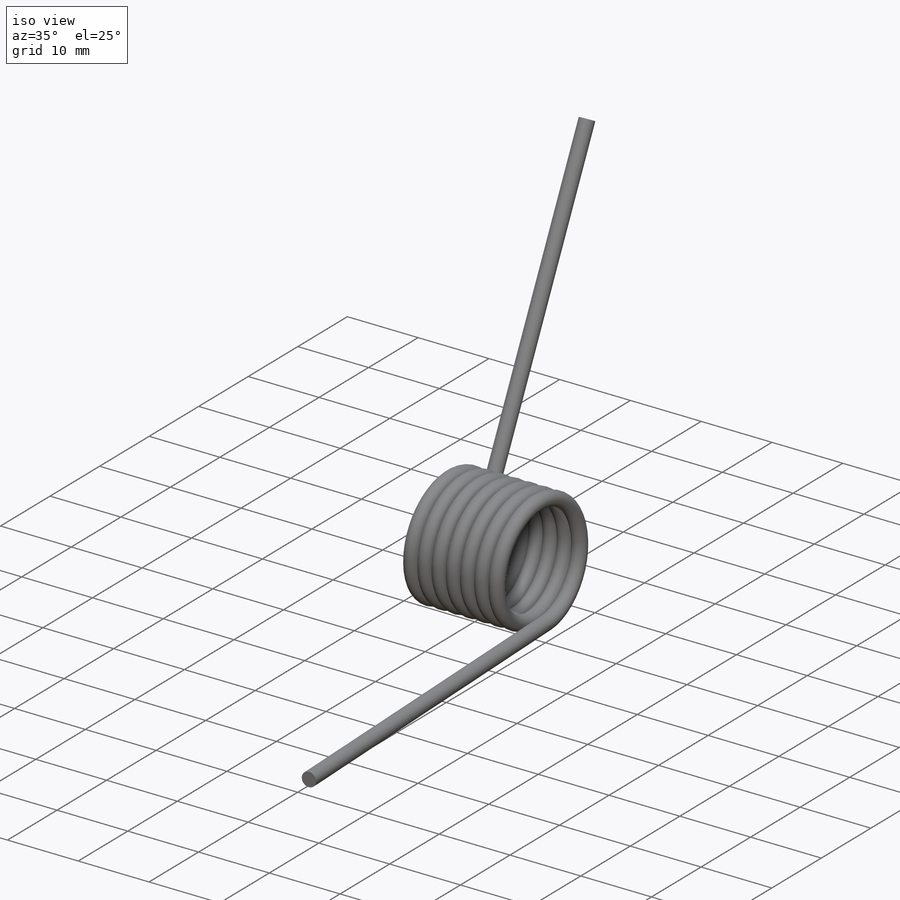
[diagram: iso view]
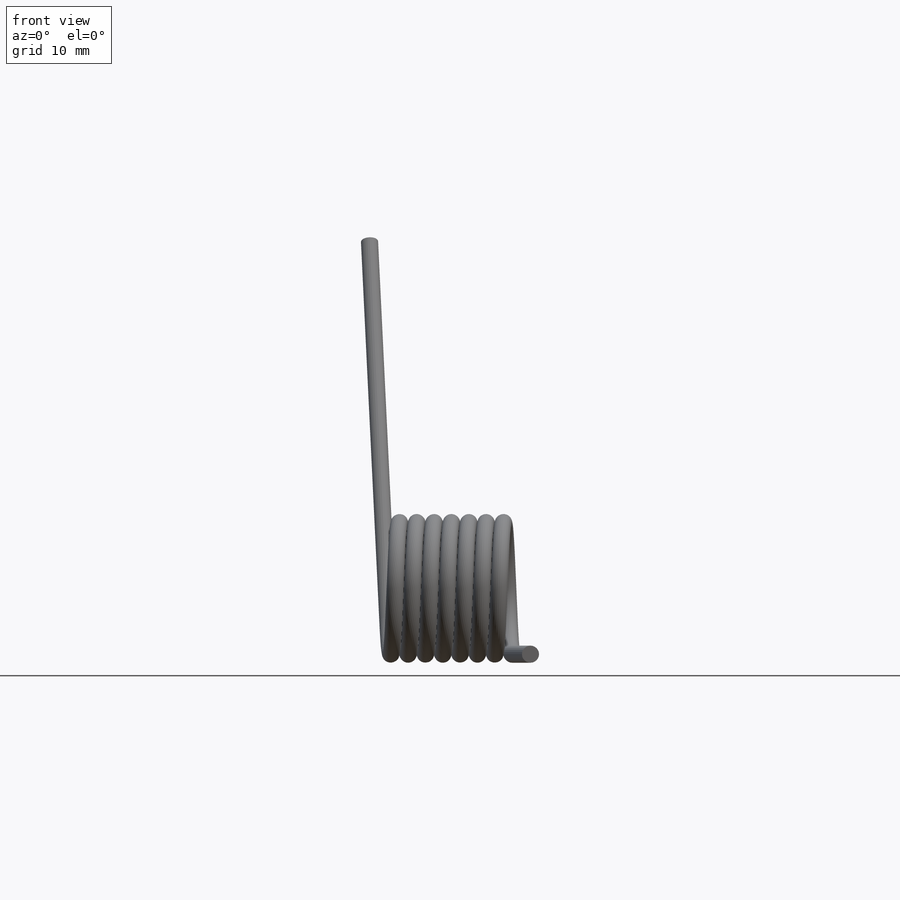
[diagram: front view]
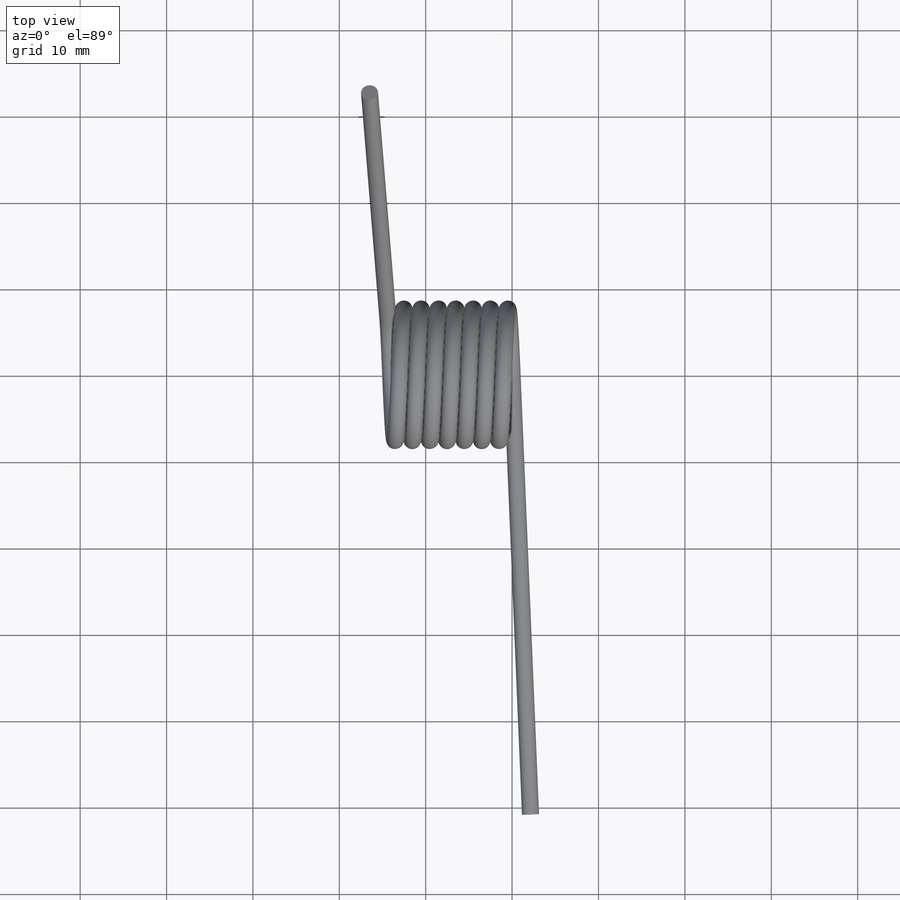
[diagram: top view]
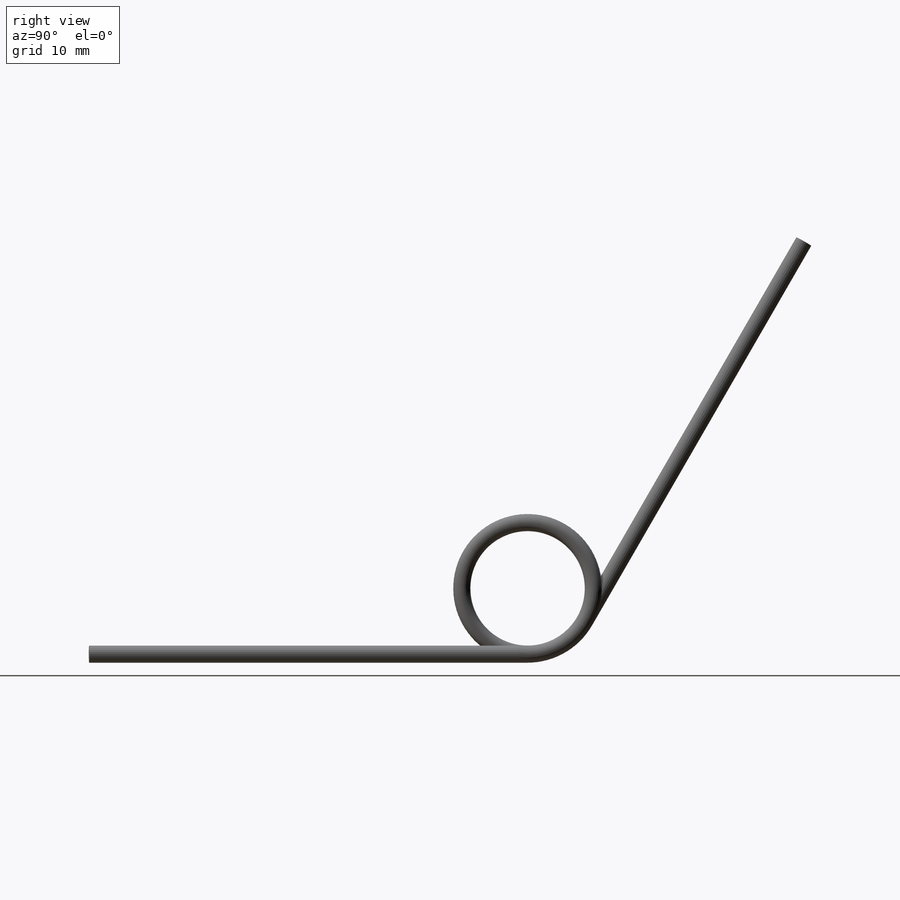
[diagram: right view]
SOLIDWORKS PART (.sldprt)
format: sldprt  version: not decoded by parser v0  size: 565,760 bytes
history: native  units: mm
features: sketch x4, plane x3, extrude x2, material x1, helix x1, sweep x1 (+13 scaffold rows collapsed)
feature tree (25):
  scaffold x13  (default folders/planes/origin — collapsed)
  material  "Material <not specified>"
  sketch  "Sketch1"  dims[Wire Dia=1.9812mm Spring OD=17.2212mm Max Rod OD=10.3124mm]
  helix  "Helix/Spiral1"  Pitch=14.380633mm Number Coils=7.166667
  plane  "Plane1"
  sketch  "Sketch2"  dims[D1=1.9812mm]
  sweep  "Sweep1"
  sketch  "Sketch3"  dims[D1=0.0mm]
  extrude  "Extrude1"  [1 undecoded]
  sketch  "Sketch4"  dims[D1=0.0mm]
  extrude  "Extrude2"  [1 undecoded]
  plane  "Plane2"
  plane  "Plane3"
decode coverage: 5 of 8 modeling features carry decoded parameters
note: 2 parameter values undecoded
note: suppression state not decoded; provenance and decode notes live in map.json
